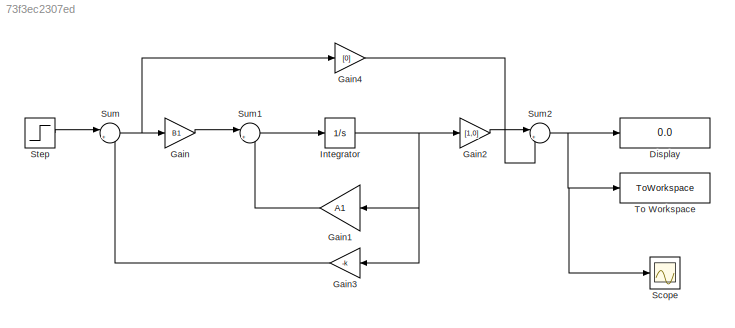
MODEL slx_73f3ec2307ed
KIND model
CONFIG AbsTol = auto
CONFIG EnableMultiTasking = off
CONFIG FixedStep = auto
CONFIG MaxStep = auto
CONFIG MinStep = auto
CONFIG RelTol = 1e-3
CONFIG SampleTimeConstraint = Unconstrained
CONFIG SolverName = VariableStepAuto
CONFIG StartTime = 0.0
CONFIG StopTime = 10.0
BLOCK [Display] Display
  Decimation = 1
BLOCK [Gain] Gain
  Gain = B1
  Multiplication = Matrix(K*u)
BLOCK [Gain] Gain1
  Gain = A1
  Multiplication = Matrix(K*u)
BLOCK [Gain] Gain2
  Gain = [1,0]
BLOCK [Gain] Gain3
  Gain = -k
  Multiplication = Matrix(K*u)
BLOCK [Gain] Gain4
  Gain = [0]
  Multiplication = Matrix(K*u)
BLOCK [Integrator] Integrator
BLOCK [Scope] Scope
  Floating = off
  NumInputPorts = 1
  ScopeSpecificationString = Simulink.scopes.TimeScopeBlockCfg('CurrentConfiguration', extmgr.ConfigurationSet(extmgr.Configuration('Core','General UI',true),extmgr.Configuration('Core','Source UI',true),extmgr.Configuration('Sources','WiredSimulink',true),extmgr.Configuration('Visuals','Time Domain',true,'SerializedDisplays',{struct('MinYLimReal','-0.00075','MaxYLimReal','0.00672','YLabelReal','','MinYLimMag','0.00000','MaxY...<+1335ch>
BLOCK [Step] Step
  SampleTime = 0
  Time = 0
BLOCK [Sum] Sum
  Inputs = |++
BLOCK [Sum] Sum1
  Inputs = |++
BLOCK [Sum] Sum2
  Inputs = |++
BLOCK [ToWorkspace] To Workspace
  FixptAsFi = on
  MaxDataPoints = inf
  SampleTime = -1
  VariableName = y
LINE Gain1:1 -> Sum1:2
LINE Gain2:1 -> Sum2:1
LINE Gain3:1 -> Sum:2
LINE Gain4:1 -> Sum2:2
LINE Gain:1 -> Sum1:1
NET Integrator:1 -> Gain1:1, Gain2:1, Gain3:1
LINE Step:1 -> Sum:1
LINE Sum1:1 -> Integrator:1
NET Sum2:1 -> Display:1, Scope:1, To Workspace:1
NET Sum:1 -> Gain4:1, Gain:1
note: NET lines group one-source signal fan-out (src -> all destinations, sorted); 1:1 wires keep LINE
